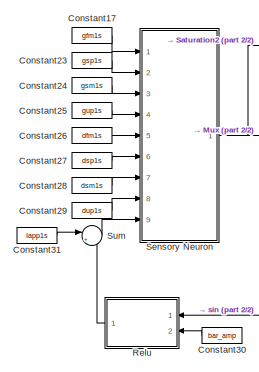
[diagram: root canvas - part 1/2, top left region]
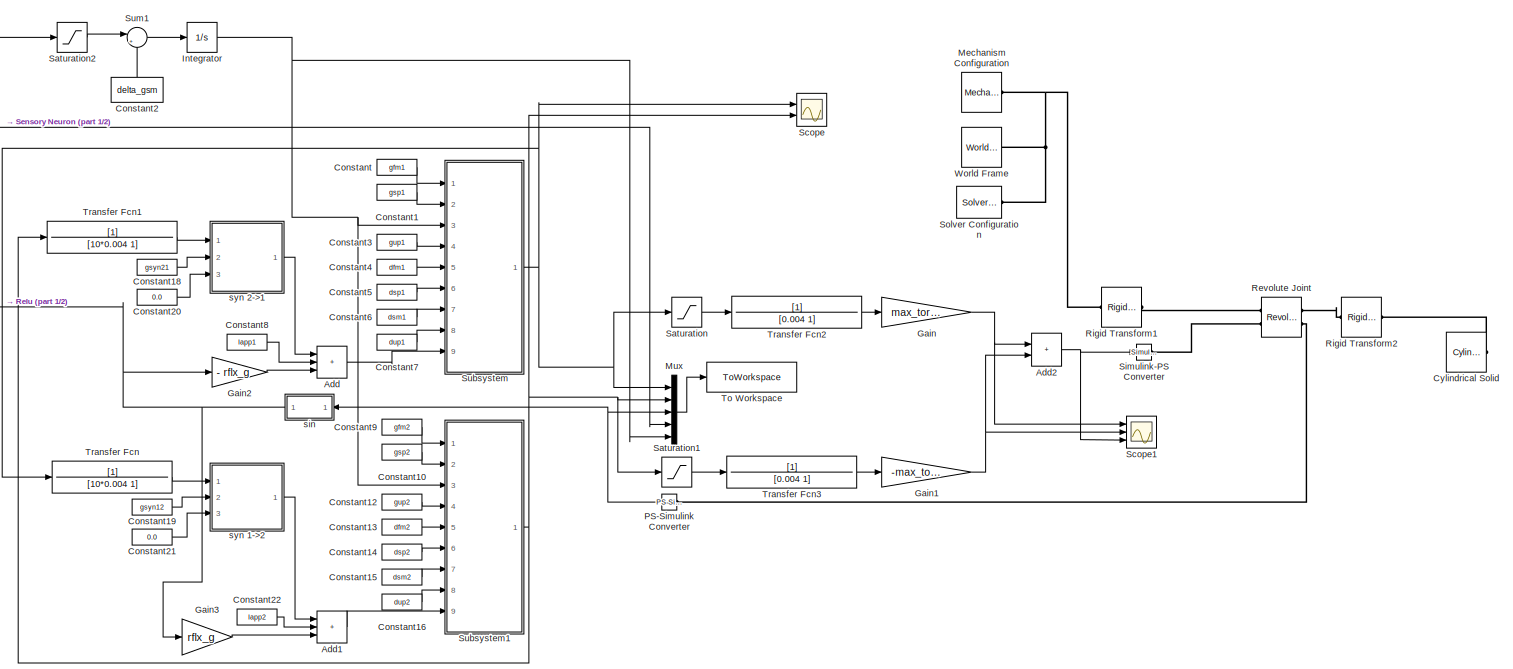
[diagram: root canvas - part 2/2, most of the canvas]
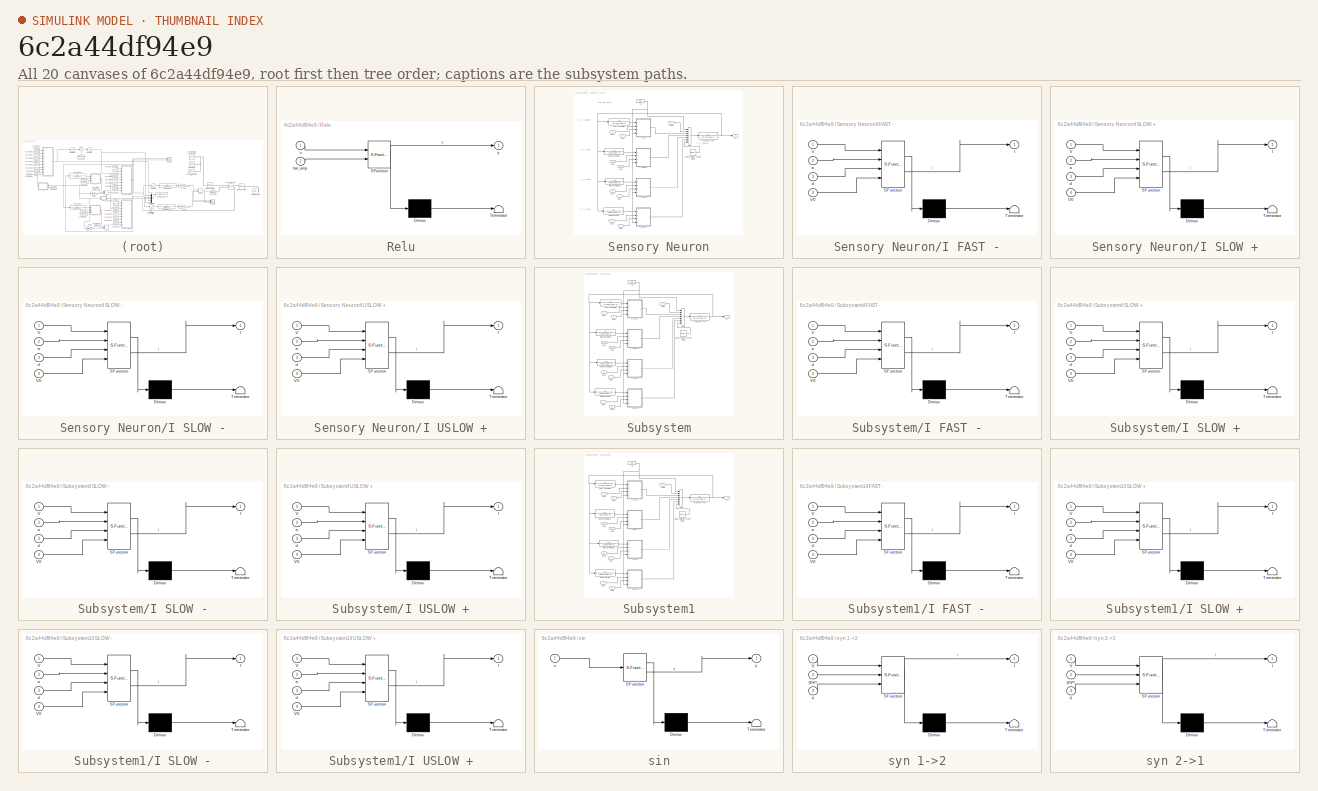
[diagram: thumbnail index - all 20 canvases of the model, root first then tree order]
MODEL slx_6c2a44df94e9
KIND model
CONFIG AbsTol = auto
CONFIG EnableMultiTasking = off
CONFIG FixedStep = auto
CONFIG MaxStep = auto
CONFIG MinStep = auto
CONFIG RelTol = 1e-3
CONFIG SampleTimeConstraint = Unconstrained
CONFIG SolverName = VariableStepAuto
CONFIG StartTime = 0.0
CONFIG StopTime = 50
BLOCK [Sum] Add
  IconShape = rectangular
  Inputs = +++
  Ports = [3, 1]
BLOCK [Sum] Add1
  IconShape = rectangular
  Inputs = +++
  Ports = [3, 1]
BLOCK [Sum] Add2
  IconShape = rectangular
  Ports = [2, 1]
BLOCK [Constant] Constant
  Value = gfm1
BLOCK [Constant] Constant1
  Value = gsp1
BLOCK [Constant] Constant10
  Value = gsp2
BLOCK [Constant] Constant12
  Value = gup2
BLOCK [Constant] Constant13
  Value = dfm2
BLOCK [Constant] Constant14
  Value = dsp2
BLOCK [Constant] Constant15
  Value = dsm2
BLOCK [Constant] Constant16
  Value = dup2
BLOCK [Constant] Constant17
  Value = gfm1s
BLOCK [Constant] Constant18
  Value = gsyn21
BLOCK [Constant] Constant19
  Value = gsyn12
BLOCK [Constant] Constant2
  NameLocation = right
  Value = delta_gsm
BLOCK [Constant] Constant20
  Value = 0.0
BLOCK [Constant] Constant21
  Value = 0.0
BLOCK [Constant] Constant22
  Value = Iapp2
BLOCK [Constant] Constant23
  Value = gsp1s
BLOCK [Constant] Constant24
  Value = gsm1s
BLOCK [Constant] Constant25
  Value = gup1s
BLOCK [Constant] Constant26
  Value = dfm1s
BLOCK [Constant] Constant27
  Value = dsp1s
BLOCK [Constant] Constant28
  Value = dsm1s
BLOCK [Constant] Constant29
  Value = dup1s
BLOCK [Constant] Constant3
  Value = gup1
BLOCK [Constant] Constant30
  Value = bar_amp
BLOCK [Constant] Constant31
  Value = Iapp1s
BLOCK [Constant] Constant4
  Value = dfm1
BLOCK [Constant] Constant5
  Value = dsp1
BLOCK [Constant] Constant6
  Value = dsm1
BLOCK [Constant] Constant7
  Value = dup1
BLOCK [Constant] Constant8
  Value = Iapp1
BLOCK [Constant] Constant9
  Value = gfm2
BLOCK [Reference] Cylindrical Solid  REF=sm_lib/Body Elements/Cylindrical Solid
  Ports = [0, 0, 0, 0, 0, 0, 1]
  SourceBlock = sm_lib/Body Elements/Cylindrical Solid
  SourceProductBaseCode = MS
  SourceType = Cylindrical Solid
BLOCK [Gain] Gain
  Gain = max_torque
BLOCK [Gain] Gain1
  Gain = -max_torque
BLOCK [Gain] Gain2
  Gain = - rflx_g
BLOCK [Gain] Gain3
  Gain = rflx_g
BLOCK [Integrator] Integrator
  InitialCondition = gsm0
  Ports = [1, 1]
BLOCK [Reference] Mechanism Configuration  REF=sm_lib/Utilities/Mechanism
Configuration
  Ports = [0, 0, 0, 0, 0, 0, 1]
  SourceBlock = sm_lib/Utilities/Mechanism\nConfiguration
  SourceProductBaseCode = MS
  SourceType = Mechanism\nConfiguration
BLOCK [Mux] Mux
  DisplayOption = bar
  Inputs = 5
  Ports = [5, 1]
BLOCK [Reference] PS-Simulink Converter  REF=nesl_utility/PS-Simulink
Converter
  Ports = [0, 1, 0, 0, 0, 1]
  SourceBlock = nesl_utility/PS-Simulink\nConverter
  SourceProductBaseCode = SS,PW,VE
  SourceType = PS-Simulink\nConverter
BLOCK [SubSystem] Relu
  ErrorFcn = Stateflow.Translate.translate
  PermitHierarchicalResolution = ExplicitOnly
  Ports = [2, 1]
  RequestExecContextInheritance = off
  SFBlockType = MATLAB Function
  TreatAsAtomicUnit = on
BLOCK [Demux] Relu/ Demux 
  Outputs = 1
  Ports = [1, 1]
BLOCK [S-Function] Relu/ SFunction 
  EnableBusSupport = on
  FunctionName = sf_sfun
  PortCounts = [2 2]
  Ports = [2, 2]
  SFcnIsStateOwnerBlock = off
  SFunctionDeploymentMode = off
  Tag = Stateflow S-Function 17
BLOCK [Terminator] Relu/ Terminator 
BLOCK [Inport] Relu/bar_amp
  Port = 2
BLOCK [Inport] Relu/u
BLOCK [Outport] Relu/y
BLOCK [Reference] Revolute Joint  REF=sm_lib/Joints/Revolute Joint
  Ports = [0, 0, 0, 0, 0, 2, 2]
  SourceBlock = sm_lib/Joints/Revolute Joint
  SourceProductBaseCode = MS
  SourceType = Revolute Joint
BLOCK [Reference] Rigid Transform1  REF=sm_lib/Frames and
Transforms/Rigid
Transform
  Ports = [0, 0, 0, 0, 0, 1, 1]
  SourceBlock = sm_lib/Frames and\nTransforms/Rigid\nTransform
  SourceProductBaseCode = MS
  SourceType = Rigid\nTransform
BLOCK [Reference] Rigid Transform2  REF=sm_lib/Frames and
Transforms/Rigid
Transform
  Ports = [0, 0, 0, 0, 0, 1, 1]
  SourceBlock = sm_lib/Frames and\nTransforms/Rigid\nTransform
  SourceProductBaseCode = MS
  SourceType = Rigid\nTransform
BLOCK [Saturate] Saturation
  LowerLimit = 0.0
  UpperLimit = 1.0
BLOCK [Saturate] Saturation1
  LowerLimit = 0.0
  UpperLimit = 1.0
BLOCK [Saturate] Saturation2
  LowerLimit = 0.0
  UpperLimit = 1.0
BLOCK [Scope] Scope
  Floating = off
  NumInputPorts = 2
  Ports = [2]
  ScopeSpecificationString = Simulink.scopes.TimeScopeBlockCfg('CurrentConfiguration', extmgr.ConfigurationSet(extmgr.Configuration('Core','General UI',true),extmgr.Configuration('Core','Source UI',true),extmgr.Configuration('Sources','WiredSimulink',true),extmgr.Configuration('Visuals','Time Domain',true,'SerializedDisplays',{struct('MinYLimReal','-8.37721','MaxYLimReal','5.72692','YLabelReal','','MinYLimMag','0.00000','MaxY...<+1947ch>
BLOCK [Scope] Scope1
  Floating = off
  NumInputPorts = 3
  Ports = [3]
  ScopeSpecificationString = Simulink.scopes.TimeScopeBlockCfg('CurrentConfiguration', extmgr.ConfigurationSet(extmgr.Configuration('Core','General UI',true),extmgr.Configuration('Core','Source UI',true),extmgr.Configuration('Sources','WiredSimulink',true,'DataLoggingVariableName','ScopeData1'),extmgr.Configuration('Visuals','Time Domain',true,'SerializedDisplays',{struct('MinYLimReal','-1.24536','MaxYLimReal','10.62601','YLa...<+2767ch>
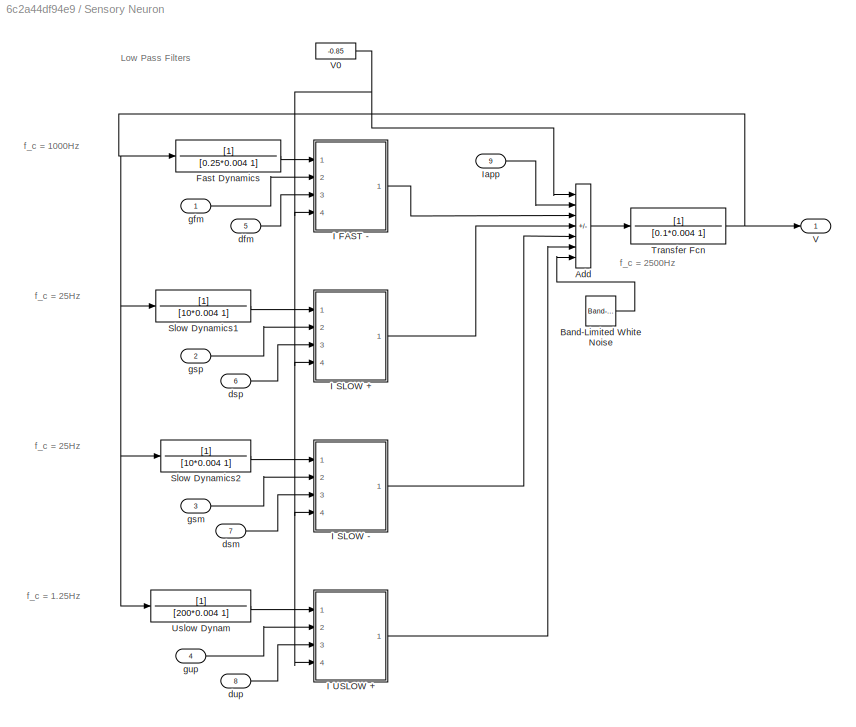
BLOCK [SubSystem] Sensory Neuron
  Ports = [9, 1]
  RequestExecContextInheritance = off
BLOCK [Sum] Sensory Neuron/Add
  IconShape = rectangular
  Inputs = ++----+
  Ports = [7, 1]
BLOCK [Reference] Sensory Neuron/Band-Limited White Noise  REF=simulink/Sources/Band-Limited
White Noise
  Ports = [0, 1]
  SourceBlock = simulink/Sources/Band-Limited\nWhite Noise
  SourceProductBaseCode = SL
  SourceType = Band-Limited White Noise.
BLOCK [TransferFcn] Sensory Neuron/Fast Dynamics
  Denominator = [0.25*0.004 1]
BLOCK [SubSystem] Sensory Neuron/I FAST -
  ErrorFcn = Stateflow.Translate.translate
  PermitHierarchicalResolution = ExplicitOnly
  Ports = [4, 1]
  RequestExecContextInheritance = off
  SFBlockType = MATLAB Function
  TreatAsAtomicUnit = on
BLOCK [Demux] Sensory Neuron/I FAST -/ Demux 
  Outputs = 1
  Ports = [1, 1]
BLOCK [S-Function] Sensory Neuron/I FAST -/ SFunction 
  EnableBusSupport = on
  FunctionName = sf_sfun
  PortCounts = [4 2]
  Ports = [4, 2]
  SFcnIsStateOwnerBlock = off
  SFunctionDeploymentMode = off
  Tag = Stateflow S-Function 13
BLOCK [Terminator] Sensory Neuron/I FAST -/ Terminator 
BLOCK [Outport] Sensory Neuron/I FAST -/I
BLOCK [Inport] Sensory Neuron/I FAST -/V
BLOCK [Inport] Sensory Neuron/I FAST -/V0
  Port = 4
BLOCK [Inport] Sensory Neuron/I FAST -/a
  Port = 2
BLOCK [Inport] Sensory Neuron/I FAST -/d
  Port = 3
BLOCK [SubSystem] Sensory Neuron/I SLOW +
  ErrorFcn = Stateflow.Translate.translate
  PermitHierarchicalResolution = ExplicitOnly
  Ports = [4, 1]
  RequestExecContextInheritance = off
  SFBlockType = MATLAB Function
  TreatAsAtomicUnit = on
BLOCK [Demux] Sensory Neuron/I SLOW +/ Demux 
  Outputs = 1
  Ports = [1, 1]
BLOCK [S-Function] Sensory Neuron/I SLOW +/ SFunction 
  EnableBusSupport = on
  FunctionName = sf_sfun
  PortCounts = [4 2]
  Ports = [4, 2]
  SFcnIsStateOwnerBlock = off
  SFunctionDeploymentMode = off
  Tag = Stateflow S-Function 14
BLOCK [Terminator] Sensory Neuron/I SLOW +/ Terminator 
BLOCK [Outport] Sensory Neuron/I SLOW +/I
BLOCK [Inport] Sensory Neuron/I SLOW +/V
BLOCK [Inport] Sensory Neuron/I SLOW +/V0
  Port = 4
BLOCK [Inport] Sensory Neuron/I SLOW +/a
  Port = 2
BLOCK [Inport] Sensory Neuron/I SLOW +/d
  Port = 3
BLOCK [SubSystem] Sensory Neuron/I SLOW -
  ErrorFcn = Stateflow.Translate.translate
  PermitHierarchicalResolution = ExplicitOnly
  Ports = [4, 1]
  RequestExecContextInheritance = off
  SFBlockType = MATLAB Function
  TreatAsAtomicUnit = on
BLOCK [Demux] Sensory Neuron/I SLOW -/ Demux 
  Outputs = 1
  Ports = [1, 1]
BLOCK [S-Function] Sensory Neuron/I SLOW -/ SFunction 
  EnableBusSupport = on
  FunctionName = sf_sfun
  PortCounts = [4 2]
  Ports = [4, 2]
  SFcnIsStateOwnerBlock = off
  SFunctionDeploymentMode = off
  Tag = Stateflow S-Function 15
BLOCK [Terminator] Sensory Neuron/I SLOW -/ Terminator 
BLOCK [Outport] Sensory Neuron/I SLOW -/I
BLOCK [Inport] Sensory Neuron/I SLOW -/V
BLOCK [Inport] Sensory Neuron/I SLOW -/V0
  Port = 4
BLOCK [Inport] Sensory Neuron/I SLOW -/a
  Port = 2
BLOCK [Inport] Sensory Neuron/I SLOW -/d
  Port = 3
BLOCK [SubSystem] Sensory Neuron/I USLOW +
  ErrorFcn = Stateflow.Translate.translate
  PermitHierarchicalResolution = ExplicitOnly
  Ports = [4, 1]
  RequestExecContextInheritance = off
  SFBlockType = MATLAB Function
  TreatAsAtomicUnit = on
BLOCK [Demux] Sensory Neuron/I USLOW +/ Demux 
  Outputs = 1
  Ports = [1, 1]
BLOCK [S-Function] Sensory Neuron/I USLOW +/ SFunction 
  EnableBusSupport = on
  FunctionName = sf_sfun
  PortCounts = [4 2]
  Ports = [4, 2]
  SFcnIsStateOwnerBlock = off
  SFunctionDeploymentMode = off
  Tag = Stateflow S-Function 16
BLOCK [Terminator] Sensory Neuron/I USLOW +/ Terminator 
BLOCK [Outport] Sensory Neuron/I USLOW +/I
BLOCK [Inport] Sensory Neuron/I USLOW +/V
BLOCK [Inport] Sensory Neuron/I USLOW +/V0
  Port = 4
BLOCK [Inport] Sensory Neuron/I USLOW +/a
  Port = 2
BLOCK [Inport] Sensory Neuron/I USLOW +/d
  Port = 3
BLOCK [Inport] Sensory Neuron/Iapp
  Port = 9
BLOCK [TransferFcn] Sensory Neuron/Slow Dynamics1
  Denominator = [10*0.004 1]
BLOCK [TransferFcn] Sensory Neuron/Slow Dynamics2
  Denominator = [10*0.004 1]
BLOCK [TransferFcn] Sensory Neuron/Transfer Fcn
  Denominator = [0.1*0.004 1]
BLOCK [TransferFcn] Sensory Neuron/Uslow Dynam
  Denominator = [200*0.004 1]
BLOCK [Outport] Sensory Neuron/V
BLOCK [Constant] Sensory Neuron/V0
  Value = -0.85
BLOCK [Inport] Sensory Neuron/dfm
  Port = 5
BLOCK [Inport] Sensory Neuron/dsm
  Port = 7
BLOCK [Inport] Sensory Neuron/dsp
  Port = 6
BLOCK [Inport] Sensory Neuron/dup
  Port = 8
BLOCK [Inport] Sensory Neuron/gfm
BLOCK [Inport] Sensory Neuron/gsm
  Port = 3
BLOCK [Inport] Sensory Neuron/gsp
  Port = 2
BLOCK [Inport] Sensory Neuron/gup
  Port = 4
BLOCK [Reference] Simulink-PS Converter  REF=nesl_utility/Simulink-PS
Converter
  Ports = [1, 0, 0, 0, 0, 0, 1]
  SourceBlock = nesl_utility/Simulink-PS\nConverter
  SourceProductBaseCode = SS,PW,VE
  SourceType = Simulink-PS\nConverter
BLOCK [Reference] Solver Configuration  REF=nesl_utility/Solver
Configuration
  Ports = [0, 0, 0, 0, 0, 0, 1]
  SourceBlock = nesl_utility/Solver\nConfiguration
  SourceProductBaseCode = SS,PW,VE
  SourceType = Solver\nConfiguration
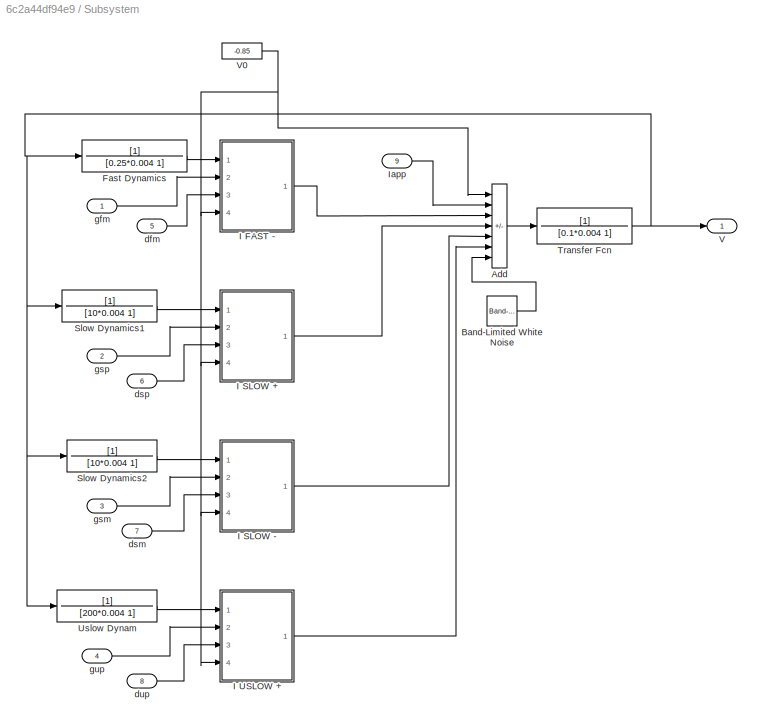
BLOCK [SubSystem] Subsystem
  Ports = [9, 1]
  RequestExecContextInheritance = off
BLOCK [Sum] Subsystem/Add
  IconShape = rectangular
  Inputs = ++----+
  Ports = [7, 1]
BLOCK [Reference] Subsystem/Band-Limited White Noise  REF=simulink/Sources/Band-Limited
White Noise
  Ports = [0, 1]
  SourceBlock = simulink/Sources/Band-Limited\nWhite Noise
  SourceProductBaseCode = SL
  SourceType = Band-Limited White Noise.
BLOCK [TransferFcn] Subsystem/Fast Dynamics
  Denominator = [0.25*0.004 1]
BLOCK [SubSystem] Subsystem/I FAST -
  ErrorFcn = Stateflow.Translate.translate
  PermitHierarchicalResolution = ExplicitOnly
  Ports = [4, 1]
  RequestExecContextInheritance = off
  SFBlockType = MATLAB Function
  TreatAsAtomicUnit = on
BLOCK [Demux] Subsystem/I FAST -/ Demux 
  Outputs = 1
  Ports = [1, 1]
BLOCK [S-Function] Subsystem/I FAST -/ SFunction 
  EnableBusSupport = on
  FunctionName = sf_sfun
  PortCounts = [4 2]
  Ports = [4, 2]
  SFcnIsStateOwnerBlock = off
  SFunctionDeploymentMode = off
  Tag = Stateflow S-Function 2
BLOCK [Terminator] Subsystem/I FAST -/ Terminator 
BLOCK [Outport] Subsystem/I FAST -/I
BLOCK [Inport] Subsystem/I FAST -/V
BLOCK [Inport] Subsystem/I FAST -/V0
  Port = 4
BLOCK [Inport] Subsystem/I FAST -/a
  Port = 2
BLOCK [Inport] Subsystem/I FAST -/d
  Port = 3
BLOCK [SubSystem] Subsystem/I SLOW +
  ErrorFcn = Stateflow.Translate.translate
  PermitHierarchicalResolution = ExplicitOnly
  Ports = [4, 1]
  RequestExecContextInheritance = off
  SFBlockType = MATLAB Function
  TreatAsAtomicUnit = on
BLOCK [Demux] Subsystem/I SLOW +/ Demux 
  Outputs = 1
  Ports = [1, 1]
BLOCK [S-Function] Subsystem/I SLOW +/ SFunction 
  EnableBusSupport = on
  FunctionName = sf_sfun
  PortCounts = [4 2]
  Ports = [4, 2]
  SFcnIsStateOwnerBlock = off
  SFunctionDeploymentMode = off
  Tag = Stateflow S-Function 1
BLOCK [Terminator] Subsystem/I SLOW +/ Terminator 
BLOCK [Outport] Subsystem/I SLOW +/I
BLOCK [Inport] Subsystem/I SLOW +/V
BLOCK [Inport] Subsystem/I SLOW +/V0
  Port = 4
BLOCK [Inport] Subsystem/I SLOW +/a
  Port = 2
BLOCK [Inport] Subsystem/I SLOW +/d
  Port = 3
BLOCK [SubSystem] Subsystem/I SLOW -
  ErrorFcn = Stateflow.Translate.translate
  PermitHierarchicalResolution = ExplicitOnly
  Ports = [4, 1]
  RequestExecContextInheritance = off
  SFBlockType = MATLAB Function
  TreatAsAtomicUnit = on
BLOCK [Demux] Subsystem/I SLOW -/ Demux 
  Outputs = 1
  Ports = [1, 1]
BLOCK [S-Function] Subsystem/I SLOW -/ SFunction 
  EnableBusSupport = on
  FunctionName = sf_sfun
  PortCounts = [4 2]
  Ports = [4, 2]
  SFcnIsStateOwnerBlock = off
  SFunctionDeploymentMode = off
  Tag = Stateflow S-Function 3
BLOCK [Terminator] Subsystem/I SLOW -/ Terminator 
BLOCK [Outport] Subsystem/I SLOW -/I
BLOCK [Inport] Subsystem/I SLOW -/V
BLOCK [Inport] Subsystem/I SLOW -/V0
  Port = 4
BLOCK [Inport] Subsystem/I SLOW -/a
  Port = 2
BLOCK [Inport] Subsystem/I SLOW -/d
  Port = 3
BLOCK [SubSystem] Subsystem/I USLOW +
  ErrorFcn = Stateflow.Translate.translate
  PermitHierarchicalResolution = ExplicitOnly
  Ports = [4, 1]
  RequestExecContextInheritance = off
  SFBlockType = MATLAB Function
  TreatAsAtomicUnit = on
BLOCK [Demux] Subsystem/I USLOW +/ Demux 
  Outputs = 1
  Ports = [1, 1]
BLOCK [S-Function] Subsystem/I USLOW +/ SFunction 
  EnableBusSupport = on
  FunctionName = sf_sfun
  PortCounts = [4 2]
  Ports = [4, 2]
  SFcnIsStateOwnerBlock = off
  SFunctionDeploymentMode = off
  Tag = Stateflow S-Function 4
BLOCK [Terminator] Subsystem/I USLOW +/ Terminator 
BLOCK [Outport] Subsystem/I USLOW +/I
BLOCK [Inport] Subsystem/I USLOW +/V
BLOCK [Inport] Subsystem/I USLOW +/V0
  Port = 4
BLOCK [Inport] Subsystem/I USLOW +/a
  Port = 2
BLOCK [Inport] Subsystem/I USLOW +/d
  Port = 3
BLOCK [Inport] Subsystem/Iapp
  Port = 9
BLOCK [TransferFcn] Subsystem/Slow Dynamics1
  Denominator = [10*0.004 1]
BLOCK [TransferFcn] Subsystem/Slow Dynamics2
  Denominator = [10*0.004 1]
BLOCK [TransferFcn] Subsystem/Transfer Fcn
  Denominator = [0.1*0.004 1]
BLOCK [TransferFcn] Subsystem/Uslow Dynam
  Denominator = [200*0.004 1]
BLOCK [Outport] Subsystem/V
BLOCK [Constant] Subsystem/V0
  Value = -0.85
BLOCK [Inport] Subsystem/dfm
  Port = 5
BLOCK [Inport] Subsystem/dsm
  Port = 7
BLOCK [Inport] Subsystem/dsp
  Port = 6
BLOCK [Inport] Subsystem/dup
  Port = 8
BLOCK [Inport] Subsystem/gfm
BLOCK [Inport] Subsystem/gsm
  Port = 3
BLOCK [Inport] Subsystem/gsp
  Port = 2
BLOCK [Inport] Subsystem/gup
  Port = 4
BLOCK [SubSystem] Subsystem1
  Ports = [9, 1]
  RequestExecContextInheritance = off
BLOCK [Sum] Subsystem1/Add
  IconShape = rectangular
  Inputs = ++----+
  Ports = [7, 1]
BLOCK [Reference] Subsystem1/Band-Limited White Noise  REF=simulink/Sources/Band-Limited
White Noise
  Ports = [0, 1]
  SourceBlock = simulink/Sources/Band-Limited\nWhite Noise
  SourceProductBaseCode = SL
  SourceType = Band-Limited White Noise.
BLOCK [TransferFcn] Subsystem1/Fast Dynamics
  Denominator = [0.25*0.004 1]
BLOCK [SubSystem] Subsystem1/I FAST -
  ErrorFcn = Stateflow.Translate.translate
  PermitHierarchicalResolution = ExplicitOnly
  Ports = [4, 1]
  RequestExecContextInheritance = off
  SFBlockType = MATLAB Function
  TreatAsAtomicUnit = on
BLOCK [Demux] Subsystem1/I FAST -/ Demux 
  Outputs = 1
  Ports = [1, 1]
BLOCK [S-Function] Subsystem1/I FAST -/ SFunction 
  EnableBusSupport = on
  FunctionName = sf_sfun
  PortCounts = [4 2]
  Ports = [4, 2]
  SFcnIsStateOwnerBlock = off
  SFunctionDeploymentMode = off
  Tag = Stateflow S-Function 5
BLOCK [Terminator] Subsystem1/I FAST -/ Terminator 
BLOCK [Outport] Subsystem1/I FAST -/I
BLOCK [Inport] Subsystem1/I FAST -/V
BLOCK [Inport] Subsystem1/I FAST -/V0
  Port = 4
BLOCK [Inport] Subsystem1/I FAST -/a
  Port = 2
BLOCK [Inport] Subsystem1/I FAST -/d
  Port = 3
BLOCK [SubSystem] Subsystem1/I SLOW +
  ErrorFcn = Stateflow.Translate.translate
  PermitHierarchicalResolution = ExplicitOnly
  Ports = [4, 1]
  RequestExecContextInheritance = off
  SFBlockType = MATLAB Function
  TreatAsAtomicUnit = on
BLOCK [Demux] Subsystem1/I SLOW +/ Demux 
  Outputs = 1
  Ports = [1, 1]
BLOCK [S-Function] Subsystem1/I SLOW +/ SFunction 
  EnableBusSupport = on
  FunctionName = sf_sfun
  PortCounts = [4 2]
  Ports = [4, 2]
  SFcnIsStateOwnerBlock = off
  SFunctionDeploymentMode = off
  Tag = Stateflow S-Function 6
BLOCK [Terminator] Subsystem1/I SLOW +/ Terminator 
BLOCK [Outport] Subsystem1/I SLOW +/I
BLOCK [Inport] Subsystem1/I SLOW +/V
BLOCK [Inport] Subsystem1/I SLOW +/V0
  Port = 4
BLOCK [Inport] Subsystem1/I SLOW +/a
  Port = 2
BLOCK [Inport] Subsystem1/I SLOW +/d
  Port = 3
BLOCK [SubSystem] Subsystem1/I SLOW -
  ErrorFcn = Stateflow.Translate.translate
  PermitHierarchicalResolution = ExplicitOnly
  Ports = [4, 1]
  RequestExecContextInheritance = off
  SFBlockType = MATLAB Function
  TreatAsAtomicUnit = on
BLOCK [Demux] Subsystem1/I SLOW -/ Demux 
  Outputs = 1
  Ports = [1, 1]
BLOCK [S-Function] Subsystem1/I SLOW -/ SFunction 
  EnableBusSupport = on
  FunctionName = sf_sfun
  PortCounts = [4 2]
  Ports = [4, 2]
  SFcnIsStateOwnerBlock = off
  SFunctionDeploymentMode = off
  Tag = Stateflow S-Function 7
BLOCK [Terminator] Subsystem1/I SLOW -/ Terminator 
BLOCK [Outport] Subsystem1/I SLOW -/I
BLOCK [Inport] Subsystem1/I SLOW -/V
BLOCK [Inport] Subsystem1/I SLOW -/V0
  Port = 4
BLOCK [Inport] Subsystem1/I SLOW -/a
  Port = 2
BLOCK [Inport] Subsystem1/I SLOW -/d
  Port = 3
BLOCK [SubSystem] Subsystem1/I USLOW +
  ErrorFcn = Stateflow.Translate.translate
  PermitHierarchicalResolution = ExplicitOnly
  Ports = [4, 1]
  RequestExecContextInheritance = off
  SFBlockType = MATLAB Function
  TreatAsAtomicUnit = on
BLOCK [Demux] Subsystem1/I USLOW +/ Demux 
  Outputs = 1
  Ports = [1, 1]
BLOCK [S-Function] Subsystem1/I USLOW +/ SFunction 
  EnableBusSupport = on
  FunctionName = sf_sfun
  PortCounts = [4 2]
  Ports = [4, 2]
  SFcnIsStateOwnerBlock = off
  SFunctionDeploymentMode = off
  Tag = Stateflow S-Function 8
BLOCK [Terminator] Subsystem1/I USLOW +/ Terminator 
BLOCK [Outport] Subsystem1/I USLOW +/I
BLOCK [Inport] Subsystem1/I USLOW +/V
BLOCK [Inport] Subsystem1/I USLOW +/V0
  Port = 4
BLOCK [Inport] Subsystem1/I USLOW +/a
  Port = 2
BLOCK [Inport] Subsystem1/I USLOW +/d
  Port = 3
BLOCK [Inport] Subsystem1/Iapp
  Port = 9
BLOCK [TransferFcn] Subsystem1/Slow Dynamics1
  Denominator = [10*0.004 1]
BLOCK [TransferFcn] Subsystem1/Slow Dynamics2
  Denominator = [10*0.004 1]
BLOCK [TransferFcn] Subsystem1/Transfer Fcn
  Denominator = [0.1*0.004 1]
BLOCK [TransferFcn] Subsystem1/Uslow Dynam
  Denominator = [200*0.004 1]
BLOCK [Outport] Subsystem1/V
BLOCK [Constant] Subsystem1/V0
  Value = -0.85
BLOCK [Inport] Subsystem1/dfm
  Port = 5
BLOCK [Inport] Subsystem1/dsm
  Port = 7
BLOCK [Inport] Subsystem1/dsp
  Port = 6
BLOCK [Inport] Subsystem1/dup
  Port = 8
BLOCK [Inport] Subsystem1/gfm
BLOCK [Inport] Subsystem1/gsm
  Port = 3
BLOCK [Inport] Subsystem1/gsp
  Port = 2
BLOCK [Inport] Subsystem1/gup
  Port = 4
BLOCK [Sum] Sum
  Inputs = |++
  Ports = [2, 1]
BLOCK [Sum] Sum1
  Inputs = |++
  Ports = [2, 1]
BLOCK [ToWorkspace] To Workspace
  FixptAsFi = on
  MaxDataPoints = inf
  Ports = [1]
  SampleTime = -1
  SaveFormat = Structure With Time
  VariableName = voltages_angle
BLOCK [TransferFcn] Transfer Fcn
  Denominator = [10*0.004 1]
BLOCK [TransferFcn] Transfer Fcn1
  Denominator = [10*0.004 1]
BLOCK [TransferFcn] Transfer Fcn2
  Denominator = [0.004 1]
BLOCK [TransferFcn] Transfer Fcn3
  Denominator = [0.004 1]
BLOCK [Reference] World Frame  REF=sm_lib/Frames and
Transforms/World Frame
  Ports = [0, 0, 0, 0, 0, 0, 1]
  SourceBlock = sm_lib/Frames and\nTransforms/World Frame
  SourceProductBaseCode = MS
  SourceType = World Frame
BLOCK [SubSystem] sin
  ErrorFcn = Stateflow.Translate.translate
  PermitHierarchicalResolution = ExplicitOnly
  Ports = [1, 1]
  RequestExecContextInheritance = off
  SFBlockType = MATLAB Function
  TreatAsAtomicUnit = on
BLOCK [Demux] sin/ Demux 
  Outputs = 1
  Ports = [1, 1]
BLOCK [S-Function] sin/ SFunction 
  EnableBusSupport = on
  FunctionName = sf_sfun
  PortCounts = [1 2]
  Ports = [1, 2]
  SFcnIsStateOwnerBlock = off
  SFunctionDeploymentMode = off
  Tag = Stateflow S-Function 11
BLOCK [Terminator] sin/ Terminator 
BLOCK [Inport] sin/u
BLOCK [Outport] sin/y
BLOCK [SubSystem] syn 1->2
  ErrorFcn = Stateflow.Translate.translate
  PermitHierarchicalResolution = ExplicitOnly
  Ports = [3, 1]
  RequestExecContextInheritance = off
  SFBlockType = MATLAB Function
  TreatAsAtomicUnit = on
BLOCK [Demux] syn 1->2/ Demux 
  Outputs = 1
  Ports = [1, 1]
BLOCK [S-Function] syn 1->2/ SFunction 
  EnableBusSupport = on
  FunctionName = sf_sfun
  PortCounts = [3 2]
  Ports = [3, 2]
  SFcnIsStateOwnerBlock = off
  SFunctionDeploymentMode = off
  Tag = Stateflow S-Function 9
BLOCK [Terminator] syn 1->2/ Terminator 
BLOCK [Outport] syn 1->2/I
BLOCK [Inport] syn 1->2/V
BLOCK [Inport] syn 1->2/d
  Port = 3
BLOCK [Inport] syn 1->2/gsyn
  Port = 2
BLOCK [SubSystem] syn 2->1
  ErrorFcn = Stateflow.Translate.translate
  PermitHierarchicalResolution = ExplicitOnly
  Ports = [3, 1]
  RequestExecContextInheritance = off
  SFBlockType = MATLAB Function
  TreatAsAtomicUnit = on
BLOCK [Demux] syn 2->1/ Demux 
  Outputs = 1
  Ports = [1, 1]
BLOCK [S-Function] syn 2->1/ SFunction 
  EnableBusSupport = on
  FunctionName = sf_sfun
  PortCounts = [3 2]
  Ports = [3, 2]
  SFcnIsStateOwnerBlock = off
  SFunctionDeploymentMode = off
  Tag = Stateflow S-Function 10
BLOCK [Terminator] syn 2->1/ Terminator 
BLOCK [Outport] syn 2->1/I
BLOCK [Inport] syn 2->1/V
BLOCK [Inport] syn 2->1/d
  Port = 3
BLOCK [Inport] syn 2->1/gsyn
  Port = 2
ANNOTATION Sensory Neuron: Low Pass Filters
ANNOTATION Sensory Neuron: f_c = 1.25Hz
ANNOTATION Sensory Neuron: f_c = 1000Hz
ANNOTATION Sensory Neuron: f_c = 2500Hz
ANNOTATION Sensory Neuron: f_c = 25Hz
LINE Add1:1 -> Subsystem1:9
NET Add2:1 -> Scope1:3, Simulink-PS Converter:1
LINE Add:1 -> Subsystem:9
LINE Constant10:1 -> Subsystem1:2
LINE Constant12:1 -> Subsystem1:4
LINE Constant13:1 -> Subsystem1:5
LINE Constant14:1 -> Subsystem1:6
LINE Constant15:1 -> Subsystem1:7
LINE Constant16:1 -> Subsystem1:8
LINE Constant17:1 -> Sensory Neuron:1
LINE Constant18:1 -> syn 2->1:2
LINE Constant19:1 -> syn 1->2:2
LINE Constant1:1 -> Subsystem:2
LINE Constant20:1 -> syn 2->1:3
LINE Constant21:1 -> syn 1->2:3
LINE Constant22:1 -> Add1:2
LINE Constant23:1 -> Sensory Neuron:2
LINE Constant24:1 -> Sensory Neuron:3
LINE Constant25:1 -> Sensory Neuron:4
LINE Constant26:1 -> Sensory Neuron:5
LINE Constant27:1 -> Sensory Neuron:6
LINE Constant28:1 -> Sensory Neuron:7
LINE Constant29:1 -> Sensory Neuron:8
LINE Constant2:1 -> Sum1:2
LINE Constant30:1 -> Relu:2
LINE Constant31:1 -> Sum:1
LINE Constant3:1 -> Subsystem:4
LINE Constant4:1 -> Subsystem:5
LINE Constant5:1 -> Subsystem:6
LINE Constant6:1 -> Subsystem:7
LINE Constant7:1 -> Subsystem:8
LINE Constant8:1 -> Add:2
LINE Constant9:1 -> Subsystem1:1
LINE Constant:1 -> Subsystem:1
NET Gain1:1 -> Add2:2, Scope1:2
LINE Gain2:1 -> Add:3
LINE Gain3:1 -> Add1:3
NET Gain:1 -> Add2:1, Scope1:1
NET Integrator:1 -> Mux:5, Subsystem1:3, Subsystem:3
LINE Mux:1 -> To Workspace:1
NET PS-Simulink Converter:1 -> Mux:3, sin:1
LINE Relu:1 -> Sum:2
LINE Saturation1:1 -> Transfer Fcn3:1
LINE Saturation2:1 -> Sum1:1
LINE Saturation:1 -> Transfer Fcn2:1
LINE Sensory Neuron/Add:1 -> Sensory Neuron/Transfer Fcn:1
LINE Sensory Neuron/Band-Limited White Noise:1 -> Sensory Neuron/Add:7
LINE Sensory Neuron/Fast Dynamics:1 -> Sensory Neuron/I FAST -:1
LINE Sensory Neuron/I FAST -:1 -> Sensory Neuron/Add:3
LINE Sensory Neuron/I SLOW +:1 -> Sensory Neuron/Add:4
LINE Sensory Neuron/I SLOW -:1 -> Sensory Neuron/Add:5
LINE Sensory Neuron/I USLOW +:1 -> Sensory Neuron/Add:6
LINE Sensory Neuron/Iapp:1 -> Sensory Neuron/Add:2
LINE Sensory Neuron/Slow Dynamics1:1 -> Sensory Neuron/I SLOW +:1
LINE Sensory Neuron/Slow Dynamics2:1 -> Sensory Neuron/I SLOW -:1
NET Sensory Neuron/Transfer Fcn:1 -> Sensory Neuron/Fast Dynamics:1, Sensory Neuron/Slow Dynamics1:1, Sensory Neuron/Slow Dynamics2:1, Sensory Neuron/Uslow Dynam:1, Sensory Neuron/V:1
LINE Sensory Neuron/Uslow Dynam:1 -> Sensory Neuron/I USLOW +:1
NET Sensory Neuron/V0:1 -> Sensory Neuron/Add:1, Sensory Neuron/I FAST -:4, Sensory Neuron/I SLOW +:4, Sensory Neuron/I SLOW -:4, Sensory Neuron/I USLOW +:4
LINE Sensory Neuron/dfm:1 -> Sensory Neuron/I FAST -:3
LINE Sensory Neuron/dsm:1 -> Sensory Neuron/I SLOW -:3
LINE Sensory Neuron/dsp:1 -> Sensory Neuron/I SLOW +:3
LINE Sensory Neuron/dup:1 -> Sensory Neuron/I USLOW +:3
LINE Sensory Neuron/gfm:1 -> Sensory Neuron/I FAST -:2
LINE Sensory Neuron/gsm:1 -> Sensory Neuron/I SLOW -:2
LINE Sensory Neuron/gsp:1 -> Sensory Neuron/I SLOW +:2
LINE Sensory Neuron/gup:1 -> Sensory Neuron/I USLOW +:2
NET Sensory Neuron:1 -> Mux:4, Saturation2:1
LINE Subsystem/Add:1 -> Subsystem/Transfer Fcn:1
LINE Subsystem/Band-Limited White Noise:1 -> Subsystem/Add:7
LINE Subsystem/Fast Dynamics:1 -> Subsystem/I FAST -:1
LINE Subsystem/I FAST -:1 -> Subsystem/Add:3
LINE Subsystem/I SLOW +:1 -> Subsystem/Add:4
LINE Subsystem/I SLOW -:1 -> Subsystem/Add:5
LINE Subsystem/I USLOW +:1 -> Subsystem/Add:6
LINE Subsystem/Iapp:1 -> Subsystem/Add:2
LINE Subsystem/Slow Dynamics1:1 -> Subsystem/I SLOW +:1
LINE Subsystem/Slow Dynamics2:1 -> Subsystem/I SLOW -:1
NET Subsystem/Transfer Fcn:1 -> Subsystem/Fast Dynamics:1, Subsystem/Slow Dynamics1:1, Subsystem/Slow Dynamics2:1, Subsystem/Uslow Dynam:1, Subsystem/V:1
LINE Subsystem/Uslow Dynam:1 -> Subsystem/I USLOW +:1
NET Subsystem/V0:1 -> Subsystem/Add:1, Subsystem/I FAST -:4, Subsystem/I SLOW +:4, Subsystem/I SLOW -:4, Subsystem/I USLOW +:4
LINE Subsystem/dfm:1 -> Subsystem/I FAST -:3
LINE Subsystem/dsm:1 -> Subsystem/I SLOW -:3
LINE Subsystem/dsp:1 -> Subsystem/I SLOW +:3
LINE Subsystem/dup:1 -> Subsystem/I USLOW +:3
LINE Subsystem/gfm:1 -> Subsystem/I FAST -:2
LINE Subsystem/gsm:1 -> Subsystem/I SLOW -:2
LINE Subsystem/gsp:1 -> Subsystem/I SLOW +:2
LINE Subsystem/gup:1 -> Subsystem/I USLOW +:2
LINE Subsystem1/Add:1 -> Subsystem1/Transfer Fcn:1
LINE Subsystem1/Band-Limited White Noise:1 -> Subsystem1/Add:7
LINE Subsystem1/Fast Dynamics:1 -> Subsystem1/I FAST -:1
LINE Subsystem1/I FAST -:1 -> Subsystem1/Add:3
LINE Subsystem1/I SLOW +:1 -> Subsystem1/Add:4
LINE Subsystem1/I SLOW -:1 -> Subsystem1/Add:5
LINE Subsystem1/I USLOW +:1 -> Subsystem1/Add:6
LINE Subsystem1/Iapp:1 -> Subsystem1/Add:2
LINE Subsystem1/Slow Dynamics1:1 -> Subsystem1/I SLOW +:1
LINE Subsystem1/Slow Dynamics2:1 -> Subsystem1/I SLOW -:1
NET Subsystem1/Transfer Fcn:1 -> Subsystem1/Fast Dynamics:1, Subsystem1/Slow Dynamics1:1, Subsystem1/Slow Dynamics2:1, Subsystem1/Uslow Dynam:1, Subsystem1/V:1
LINE Subsystem1/Uslow Dynam:1 -> Subsystem1/I USLOW +:1
NET Subsystem1/V0:1 -> Subsystem1/Add:1, Subsystem1/I FAST -:4, Subsystem1/I SLOW +:4, Subsystem1/I SLOW -:4, Subsystem1/I USLOW +:4
LINE Subsystem1/dfm:1 -> Subsystem1/I FAST -:3
LINE Subsystem1/dsm:1 -> Subsystem1/I SLOW -:3
LINE Subsystem1/dsp:1 -> Subsystem1/I SLOW +:3
LINE Subsystem1/dup:1 -> Subsystem1/I USLOW +:3
LINE Subsystem1/gfm:1 -> Subsystem1/I FAST -:2
LINE Subsystem1/gsm:1 -> Subsystem1/I SLOW -:2
LINE Subsystem1/gsp:1 -> Subsystem1/I SLOW +:2
LINE Subsystem1/gup:1 -> Subsystem1/I USLOW +:2
NET Subsystem1:1 -> Mux:2, Saturation1:1, Scope:2, Transfer Fcn1:1
NET Subsystem:1 -> Mux:1, Saturation:1, Scope:1, Transfer Fcn:1
LINE Sum1:1 -> Integrator:1
LINE Sum:1 -> Sensory Neuron:9
LINE Transfer Fcn1:1 -> syn 2->1:1
LINE Transfer Fcn2:1 -> Gain:1
LINE Transfer Fcn3:1 -> Gain1:1
LINE Transfer Fcn:1 -> syn 1->2:1
NET sin:1 -> Gain2:1, Gain3:1, Relu:1
LINE syn 1->2:1 -> Add1:1
LINE syn 2->1:1 -> Add:1
PLINE Cylindrical Solid:RConn1 -- Rigid Transform2:RConn1
PNET net1: Mechanism Configuration:RConn1 -- Rigid Transform1:LConn1 -- Solver Configuration:RConn1 -- World Frame:RConn1
PLINE PS-Simulink Converter:LConn1 -- Revolute Joint:RConn2
PLINE Revolute Joint:LConn1 -- Rigid Transform1:RConn1
PLINE Revolute Joint:LConn2 -- Simulink-PS Converter:RConn1
PLINE Revolute Joint:RConn1 -- Rigid Transform2:LConn1
note: NET lines group one-source signal fan-out (src -> all destinations, sorted); 1:1 wires keep LINE; PNET lines group multi-terminal physical nets as a canonical sorted terminal list (undirected conserving connections); 2-terminal nets keep the pairwise PLINE form
CHART Subsystem/I SLOW + states=1 transitions=1
  STATE_LABEL 'eML_blk_kernel()'
  STATE_LABEL 'SCRIPT:\nfunction I = fcn(V,a,d,V0)\n\nI = a*(tanh(V-d)-tanh(V0-d));\n'
CHART sin states=1 transitions=1
  STATE_LABEL 'eML_blk_kernel()'
  STATE_LABEL 'SCRIPT:\nfunction y = fcn(u)\n\ny = sin(u);\n'
CHART Sensory Neuron/I FAST - states=1 transitions=1
  STATE_LABEL 'eML_blk_kernel()'
  STATE_LABEL 'SCRIPT:\nfunction I = fcn(V,a,d,V0)\n\nI = a*(tanh(V-d)-tanh(V0-d));\n'
CHART Sensory Neuron/I SLOW + states=1 transitions=1
  STATE_LABEL 'eML_blk_kernel()'
  STATE_LABEL 'SCRIPT:\nfunction I = fcn(V,a,d,V0)\n\nI = a*(tanh(V-d)-tanh(V0-d));\n'
CHART Sensory Neuron/I SLOW - states=1 transitions=1
  STATE_LABEL 'eML_blk_kernel()'
  STATE_LABEL 'SCRIPT:\nfunction I = fcn(V,a,d,V0)\n\nI = a*(tanh(V-d)-tanh(V0-d));\n'
CHART Sensory Neuron/I USLOW + states=1 transitions=1
  STATE_LABEL 'eML_blk_kernel()'
  STATE_LABEL 'SCRIPT:\nfunction I = fcn(V,a,d,V0)\n\nI = a*(tanh(V-d)-tanh(V0-d));\n'
CHART Relu states=1 transitions=1
  STATE_LABEL 'eML_blk_kernel()'
  STATE_LABEL 'SCRIPT:\nfunction y = fcn(u,bar_amp)\n\ny = max(0,u-sin(bar_amp));\n'
CHART Subsystem/I FAST - states=1 transitions=1
  STATE_LABEL 'eML_blk_kernel()'
  STATE_LABEL 'SCRIPT:\nfunction I = fcn(V,a,d,V0)\n\nI = a*(tanh(V-d)-tanh(V0-d));\n'
CHART Subsystem/I SLOW - states=1 transitions=1
  STATE_LABEL 'eML_blk_kernel()'
  STATE_LABEL 'SCRIPT:\nfunction I = fcn(V,a,d,V0)\n\nI = a*(tanh(V-d)-tanh(V0-d));\n'
CHART Subsystem/I USLOW + states=1 transitions=1
  STATE_LABEL 'eML_blk_kernel()'
  STATE_LABEL 'SCRIPT:\nfunction I = fcn(V,a,d,V0)\n\nI = a*(tanh(V-d)-tanh(V0-d));\n'
CHART Subsystem1/I FAST - states=1 transitions=1
  STATE_LABEL 'eML_blk_kernel()'
  STATE_LABEL 'SCRIPT:\nfunction I = fcn(V,a,d,V0)\n\nI = a*(tanh(V-d)-tanh(V0-d));\n'
CHART Subsystem1/I SLOW + states=1 transitions=1
  STATE_LABEL 'eML_blk_kernel()'
  STATE_LABEL 'SCRIPT:\nfunction I = fcn(V,a,d,V0)\n\nI = a*(tanh(V-d)-tanh(V0-d));\n'
CHART Subsystem1/I SLOW - states=1 transitions=1
  STATE_LABEL 'eML_blk_kernel()'
  STATE_LABEL 'SCRIPT:\nfunction I = fcn(V,a,d,V0)\n\nI = a*(tanh(V-d)-tanh(V0-d));\n'
CHART Subsystem1/I USLOW + states=1 transitions=1
  STATE_LABEL 'eML_blk_kernel()'
  STATE_LABEL 'SCRIPT:\nfunction I = fcn(V,a,d,V0)\n\nI = a*(tanh(V-d)-tanh(V0-d));\n'
CHART syn 1->2 states=1 transitions=1
  STATE_LABEL 'eML_blk_kernel()'
  STATE_LABEL 'SCRIPT:\nfunction I = fcn(V,gsyn,d)\n\nI = gsyn*(tanh(2*(V-d))+1)/2;\n'
CHART syn 2->1 states=1 transitions=1
  STATE_LABEL 'eML_blk_kernel()'
  STATE_LABEL 'SCRIPT:\nfunction I = fcn(V,gsyn,d)\n\nI = gsyn*(tanh(2*(V-d))+1)/2;\n'
CHART  states=0 transitions=0
CHART  states=0 transitions=0
CHART  states=0 transitions=0
CHART  states=0 transitions=0
CHART  states=0 transitions=0
CHART  states=0 transitions=0
CHART  states=0 transitions=0
CHART  states=0 transitions=0
CHART  states=0 transitions=0
CHART  states=0 transitions=0
CHART  states=0 transitions=0
CHART  states=0 transitions=0
CHART  states=0 transitions=0
CHART  states=0 transitions=0
CHART  states=0 transitions=0
CHART  states=0 transitions=0
